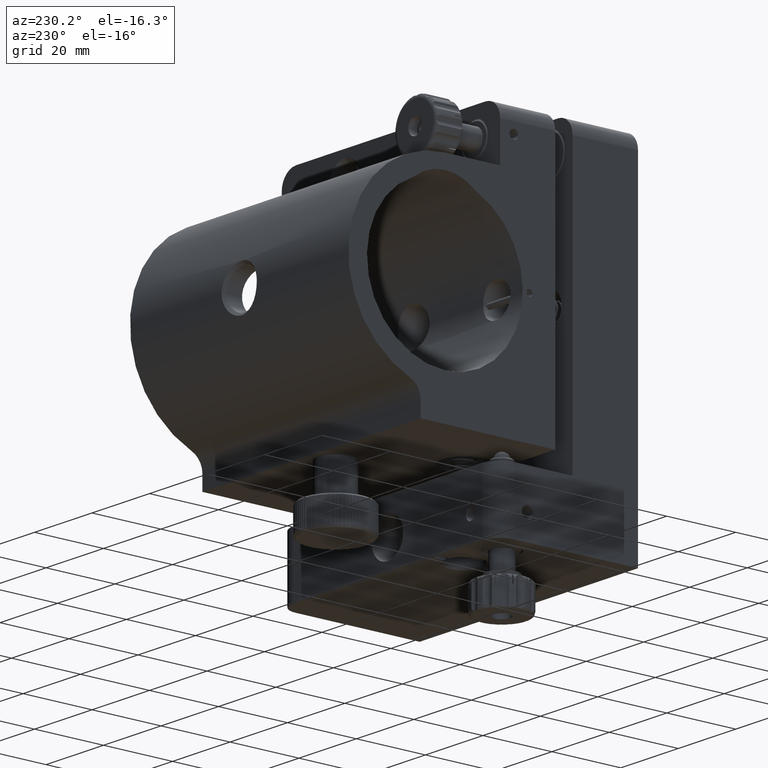
[diagram: clean part render]
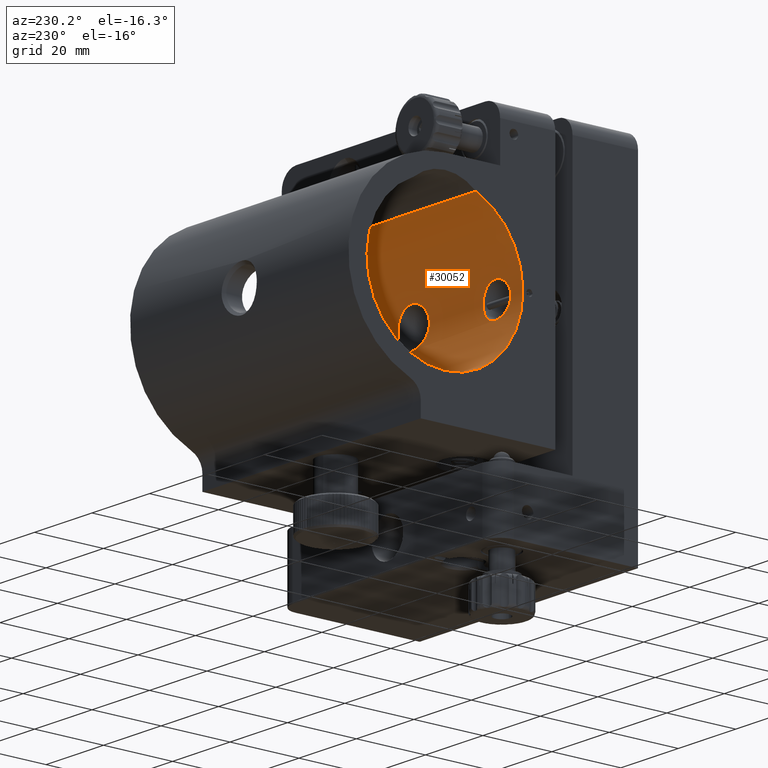
[diagram: same view with one face highlighted and labeled with its STEP entity id]
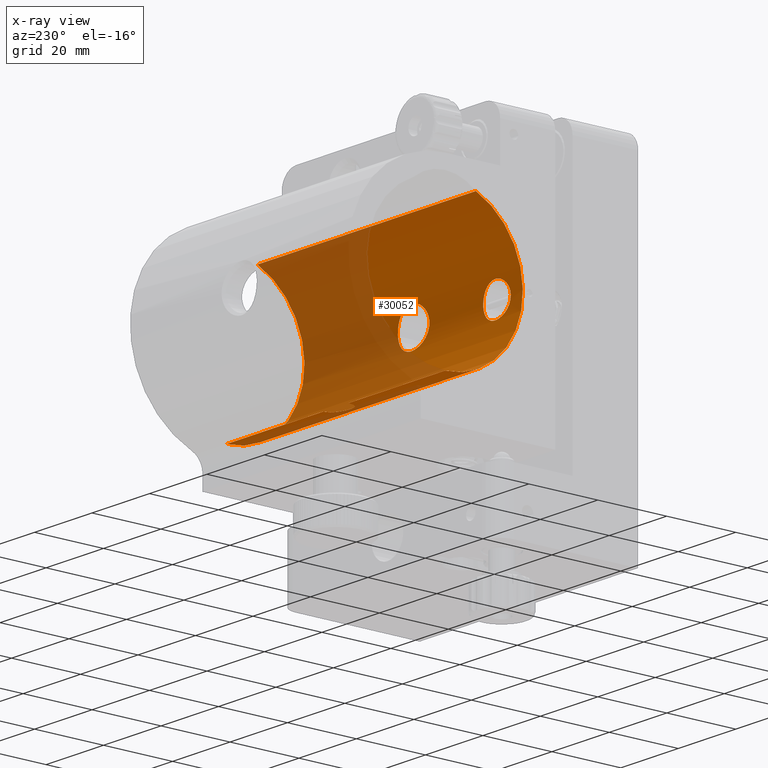
[diagram: x-ray of the same camera — body ghosted, the highlighted face saturated]
A machine part, auxiliary view. The second image highlights one B-rep face of the part: STEP entity #30052.
The next image is the same camera in x-ray: the body ghosted, the highlighted face saturated — about 46% of this face is hidden behind the body in this view.
In plain terms, the highlighted cylindrical surface (partial cylindrical patch) has radius 22.6 mm, axis along (1, -0, -0).
Its self-contained STEP definition (entity closure, byte-faithful):
#2195 = CARTESIAN_POINT ( 'NONE',  ( 37.99999999999998600, 47.01694061023731300, 20.73799999999990700 ) ) ;
#2232 = CARTESIAN_POINT ( 'NONE',  ( -38.00000000000000000, 47.01694061023731300, 20.73799999999990700 ) ) ;
#2248 = CARTESIAN_POINT ( 'NONE',  ( 8.346467968721894400E-015, 34.07946168544192700, 5.499999999999968000 ) ) ;
#2428 = CARTESIAN_POINT ( 'NONE',  ( 1.776651829401622500, 34.01005157653808900, 5.217475679901377300 ) ) ;
#2489 = EDGE_LOOP ( 'NONE', ( #15050, #18155 ) ) ;
#2530 = CARTESIAN_POINT ( 'NONE',  ( -26.06617915821696500, 33.72311972746749100, -3.812153637246024700 ) ) ;
#2570 = CARTESIAN_POINT ( 'NONE',  ( -5.464650970036623300, 33.40868142954541000, -0.7203364882578163800 ) ) ;
#2705 = CARTESIAN_POINT ( 'NONE',  ( -24.44674892012891100, 33.45143052342609000, 1.551603502541528200 ) ) ;
#2744 = CARTESIAN_POINT ( 'NONE',  ( -2.440007305407679600, 33.94655552045708200, 4.942223967232584900 ) ) ;
#2886 = CARTESIAN_POINT ( 'NONE',  ( -24.35458453327016700, 33.43240642765751900, 1.248250573659081200 ) ) ;
#2929 = CARTESIAN_POINT ( 'NONE',  ( -5.358349896053495900, 33.43408034800255300, -1.253359530072261300 ) ) ;
#3119 = CARTESIAN_POINT ( 'NONE',  ( -5.010706080715062100, 33.51416842081005100, 2.274969557391435200 ) ) ;
#3133 = CARTESIAN_POINT ( 'NONE',  ( -4.032559819079989600, 54.62933155733939800, -22.55987521291537600 ) ) ;
#3155 = CARTESIAN_POINT ( 'NONE',  ( -33.16325064628210100, 33.52727261855162100, 2.409318478730538600 ) ) ;
#3179 = CARTESIAN_POINT ( 'NONE',  ( 7.675776399004247800E-015, 34.07946168544189900, -5.500000000000032900 ) ) ;
#3298 = CARTESIAN_POINT ( 'NONE',  ( -1.775982307595658700, 34.01011844236690300, 5.217767744528132700 ) ) ;
#3312 = CARTESIAN_POINT ( 'NONE',  ( -4.113111557162672400, 54.89449205609441400, -22.57459453200042900 ) ) ;
#3326 = CARTESIAN_POINT ( 'NONE',  ( -32.17419201702691100, 33.68973501439483400, -3.614130438043294400 ) ) ;
#4323 = DIRECTION ( 'NONE',  ( 1.000000000000000000, -0.0000000000000000000, -0.0000000000000000000 ) ) ;
#4806 = VERTEX_POINT ( 'NONE', #44304 ) ;
#4845 = VERTEX_POINT ( 'NONE', #40373 ) ;
#6374 = CARTESIAN_POINT ( 'NONE',  ( 4.364954114247700200, 33.64937740638817600, -3.351026330674931100 ) ) ;
#6555 = CARTESIAN_POINT ( 'NONE',  ( 4.372010830170292000, 33.64856626473427100, 3.356088744609102100 ) ) ;
#6701 = CARTESIAN_POINT ( 'NONE',  ( -0.7210327387951265300, 34.06834864261833200, 5.455548209353076500 ) ) ;
#6727 = CARTESIAN_POINT ( 'NONE',  ( 5.217703089575752400, 33.46743602925136700, -1.776120598261833800 ) ) ;
#6750 = VERTEX_POINT ( 'NONE', #25323 ) ;
#6876 = CARTESIAN_POINT ( 'NONE',  ( -3.637358816264306700, 33.78112237389939300, -4.140928149216345700 ) ) ;
#6914 = CARTESIAN_POINT ( 'NONE',  ( 2.909797222453034400, 33.88767156880195600, 4.670688905450176300 ) ) ;
#7205 = CARTESIAN_POINT ( 'NONE',  ( -25.18231328034605800, 33.58872493661053900, -2.926436352141940300 ) ) ;
#7317 = CARTESIAN_POINT ( 'NONE',  ( -250.0000000000000000, 47.01694061023731300, 20.73799999999990700 ) ) ;
#7334 = B_SPLINE_CURVE_WITH_KNOTS ( 'NONE', 3,
 ( #2248, #54001, #19529, #45750, #2428, #11457, #37146, #53631, #6914, #24041, #28347, #45568, #6555, #49500, #41457, #36960, #41279, #23860, #53805, #32486, #24403, #19712, #49864, #41089, #6727, #11283, #27983, #36612, #6374, #15031, #45381, #36422, #49676, #23676, #50059, #54364, #36794, #10727, #19904, #40744 ),
 .UNSPECIFIED., .F., .F.,
 ( 4, 2, 2, 2, 2, 2, 2, 2, 2, 2, 2, 2, 2, 2, 2, 2, 2, 2, 2, 4 ),
 ( 0.01726039556535646400, 0.01833887838771401000, 0.01941736121007155800, 0.01995660262125033300, 0.02049584403242910400, 0.02157432685478665200, 0.02265280967714419800, 0.02373129249950174700, 0.02480977532185929200, 0.02534901673303806300, 0.02588825814421683700, 0.02696674096657438600, 0.02804522378893193100, 0.02912370661128947700, 0.02966294802246825100, 0.03020218943364702500, 0.03128067225600457400, 0.03235915507836212300, 0.03343763790071967200, 0.03451612072307722700 ),
 .UNSPECIFIED. ) ;
#7389 = CARTESIAN_POINT ( 'NONE',  ( -27.75167237691815500, 33.88254747563117800, 4.645675849172885600 ) ) ;
#7434 = CARTESIAN_POINT ( 'NONE',  ( -4.670357428949615500, 33.58766489860953200, 2.910278726050571600 ) ) ;
#7468 = CARTESIAN_POINT ( 'NONE',  ( -31.92819847237953500, 33.72383708994073000, -3.816265437612385900 ) ) ;
#7490 = VERTEX_POINT ( 'NONE', #27483 ) ;
#7657 = CARTESIAN_POINT ( 'NONE',  ( -28.99999999999999300, 33.91561637717708100, 4.799999999999896800 ) ) ;
#9108 = ORIENTED_EDGE ( 'NONE', *, *, #47027, .T. ) ;
#9763 = CARTESIAN_POINT ( 'NONE',  ( 0.5542119305636579200, 51.77695876621243100, -22.20200501478812100 ) ) ;
#10727 = CARTESIAN_POINT ( 'NONE',  ( 0.7243486358669023500, 34.07035446271667900, -5.464062307051279700 ) ) ;
#11202 = CARTESIAN_POINT ( 'NONE',  ( -27.74890780385564800, 33.88237045372560600, -4.644832917567874200 ) ) ;
#11283 = CARTESIAN_POINT ( 'NONE',  ( 4.942367419139675800, 33.52959703808843300, -2.439679119221417100 ) ) ;
#11457 = CARTESIAN_POINT ( 'NONE',  ( 2.273386836776596800, 33.96250643345450000, 5.011371901853853400 ) ) ;
#11603 = EDGE_CURVE ( 'NONE', #43175, #6750, #14529, .T. ) ;
#11618 = CARTESIAN_POINT ( 'NONE',  ( -4.941837652112250900, 33.52971181425413500, -2.440586788332213000 ) ) ;
#11765 = CARTESIAN_POINT ( 'NONE',  ( -24.83685292414082500, 33.52729276663227200, 2.409522048441625800 ) ) ;
#11838 = CARTESIAN_POINT ( 'NONE',  ( -29.31812644936291800, 33.91561637717707400, -4.800000000000087800 ) ) ;
#11997 = CARTESIAN_POINT ( 'NONE',  ( -1.884278467364153100, 52.18040221675740000, -22.27515127614113100 ) ) ;
#12172 = CARTESIAN_POINT ( 'NONE',  ( -4.222098093493668700, 55.43989091721324800, -22.59470610372353100 ) ) ;
#12189 = CARTESIAN_POINT ( 'NONE',  ( -33.64564778359604000, 33.43235891095851300, 1.247683361304228200 ) ) ;
#12344 = ORIENTED_EDGE ( 'NONE', *, *, #42893, .F. ) ;
#12386 = CARTESIAN_POINT ( 'NONE',  ( -33.79987616821114200, 33.40002630055477800, -0.3159739808531951100 ) ) ;
#13352 = DIRECTION ( 'NONE',  ( 1.000000000000000000, 0.0000000000000000000, 0.0000000000000000000 ) ) ;
#13387 = FACE_OUTER_BOUND ( 'NONE', #16350, .T. ) ;
#13415 = LINE ( 'NONE', #7317, #52961 ) ;
#14529 = LINE ( 'NONE', #36826, #22599 ) ;
#14988 = VECTOR ( 'NONE', #4323, 1000.000000000000000 ) ;
#15031 = CARTESIAN_POINT ( 'NONE',  ( 4.137235025438158700, 33.69273168766969200, -3.628427790745238000 ) ) ;
#15050 = ORIENTED_EDGE ( 'NONE', *, *, #54503, .F. ) ;
#15500 = VERTEX_POINT ( 'NONE', #2232 ) ;
#15687 = CARTESIAN_POINT ( 'NONE',  ( -28.99999999999999300, 33.91561637717708100, 4.799999999999896800 ) ) ;
#15874 = CARTESIAN_POINT ( 'NONE',  ( -24.23180059128260300, 33.40681252259447800, 0.6342623683304297000 ) ) ;
#15919 = CARTESIAN_POINT ( 'NONE',  ( -0.9019587134450245400, 34.06162577480814900, 5.428541851618517100 ) ) ;
#15952 = CARTESIAN_POINT ( 'NONE',  ( -32.81390642071525600, 33.58937604400545500, -2.931498141929336200 ) ) ;
#16113 = CARTESIAN_POINT ( 'NONE',  ( -1.105596994433070800, 51.88689408517588200, -22.22263347242475000 ) ) ;
#16126 = CARTESIAN_POINT ( 'NONE',  ( -33.16484252422775100, 33.52699180878005300, -2.407000268070673200 ) ) ;
#16162 = CARTESIAN_POINT ( 'NONE',  ( 37.99999999999998600, 55.99999999999979400, -9.584347204771859200E-014 ) ) ;
#16236 = CARTESIAN_POINT ( 'NONE',  ( -24.83334155462552000, 33.52664776501089200, -2.403688626288630100 ) ) ;
#16299 = CARTESIAN_POINT ( 'NONE',  ( -4.249999999999992000, 55.72216346672701100, -22.60000000000010100 ) ) ;
#16350 = EDGE_LOOP ( 'NONE', ( #12344, #38224, #9108, #39311, #52873, #26446, #41492 ) ) ;
#16410 = DIRECTION ( 'NONE',  ( 1.000000000000000000, -0.0000000000000000000, -0.0000000000000000000 ) ) ;
#16696 = CARTESIAN_POINT ( 'NONE',  ( -32.61652355258439700, 33.62254073222674600, 3.171772030041012600 ) ) ;
#17476 = DIRECTION ( 'NONE',  ( 0.0000000000000000000, 0.0000000000000000000, -1.000000000000000000 ) ) ;
#17656 = CARTESIAN_POINT ( 'NONE',  ( 4.250000000000007100, 55.71927081535427100, -22.60000000000009700 ) ) ;
#17846 = CARTESIAN_POINT ( 'NONE',  ( 1.371861425395285900, 51.96797637086022100, -22.23767948693794200 ) ) ;
#18017 = CARTESIAN_POINT ( 'NONE',  ( 4.032104222336450900, 54.62792564878216700, -22.55979270155776800 ) ) ;
#18155 = ORIENTED_EDGE ( 'NONE', *, *, #35555, .F. ) ;
#18340 = B_SPLINE_CURVE_WITH_KNOTS ( 'NONE', 3,
 ( #3179, #28929, #40878, #23463, #19496, #35837, #40135, #28501, #46091, #37109, #6876, #24728, #54699, #29050, #11618, #24365, #54336, #33183, #2929, #2570, #28869, #32992, #28687, #45715, #54147, #3119, #41605, #41250, #7434, #49831, #28308, #45342, #41055, #50201, #2744, #3298, #20223, #15919, #6701, #45532, #20047, #32642 ),
 .UNSPECIFIED., .F., .F.,
 ( 4, 2, 2, 2, 2, 2, 2, 2, 2, 2, 2, 2, 2, 2, 2, 2, 2, 2, 2, 2, 4 ),
 ( 2.770795377300459800E-021, 0.001078774722834775800, 0.001618162084252163400, 0.002157549445669551500, 0.003236324168504329000, 0.004315098891339106500, 0.005393873614173885800, 0.006472648337008665900, 0.007012035698426053800, 0.007551423059843442500, 0.008630197782678220000, 0.009708972505512999300, 0.01078774722834777800, 0.01132713458976517000, 0.01186652195118255900, 0.01294529667401734000, 0.01402407139685212100, 0.01510284611968690200, 0.01618162084252168500, 0.01672100820393907600, 0.01726039556535646400 ),
 .UNSPECIFIED. ) ;
#18578 = EDGE_CURVE ( 'NONE', #19349, #43175, #21483, .T. ) ;
#18748 = B_SPLINE_CURVE_WITH_KNOTS ( 'NONE', 3,
 ( #55078, #16299, #12172, #3312, #3133, #33376, #37852, #54717, #29067, #28698, #33199, #20598, #11997, #41991, #16113, #54350, #24918, #37316 ),
 .UNSPECIFIED., .F., .F.,
 ( 4, 2, 2, 2, 2, 2, 2, 2, 4 ),
 ( 0.006660174130079574300, 0.007492288067534073500, 0.008324402004988571900, 0.009156515942443070300, 0.009988629879897568600, 0.01082074381735206700, 0.01165285775480656500, 0.01248497169226106400, 0.01331708562971556200 ),
 .UNSPECIFIED. ) ;
#19349 = VERTEX_POINT ( 'NONE', #33106 ) ;
#19496 = CARTESIAN_POINT ( 'NONE',  ( -1.426688839024226300, 34.03376163281498600, -5.314819003931067900 ) ) ;
#19529 = CARTESIAN_POINT ( 'NONE',  ( 0.7180913259285591800, 34.07060472925172000, 5.465070879490337300 ) ) ;
#19712 = CARTESIAN_POINT ( 'NONE',  ( 5.500119342012377300, 33.39997095659119000, -0.3609831407668244200 ) ) ;
#19822 = CARTESIAN_POINT ( 'NONE',  ( -24.35294683082202700, 33.43206845934485500, -1.242306069718629400 ) ) ;
#19904 = CARTESIAN_POINT ( 'NONE',  ( 0.3647821834217714900, 34.07946168544189200, -5.500000000000032000 ) ) ;
#20004 = CARTESIAN_POINT ( 'NONE',  ( -26.87258190049195900, 33.81525296627592800, 4.314154161100884900 ) ) ;
#20047 = CARTESIAN_POINT ( 'NONE',  ( -0.1798737963193269800, 34.07946168544193500, 5.499999999999966200 ) ) ;
#20078 = FACE_BOUND ( 'NONE', #37188, .T. ) ;
#20187 = CARTESIAN_POINT ( 'NONE',  ( -26.86687446443618700, 33.81470079313115900, -4.311323210976545400 ) ) ;
#20223 = CARTESIAN_POINT ( 'NONE',  ( -1.433065739744168400, 34.03551471330106900, 5.322284021705848500 ) ) ;
#20259 = CARTESIAN_POINT ( 'NONE',  ( -33.31321153355015200, 33.49867152778696100, 2.129684487732626000 ) ) ;
#20439 = CARTESIAN_POINT ( 'NONE',  ( -32.61553255339882200, 33.62267879276767200, -3.172594859017085600 ) ) ;
#20543 = CARTESIAN_POINT ( 'NONE',  ( -27.44411171378724400, 33.86274486963220900, -4.551586978275326000 ) ) ;
#20598 = CARTESIAN_POINT ( 'NONE',  ( -2.133079069945617200, 52.31368150349494100, -22.29787627368817500 ) ) ;
#20799 = CARTESIAN_POINT ( 'NONE',  ( -33.64564830248875200, 33.43235952992725400, -1.248158731370105500 ) ) ;
#20994 = CARTESIAN_POINT ( 'NONE',  ( -31.41007137834746700, 33.78599443976421700, 4.162823636714533900 ) ) ;
#21408 = CARTESIAN_POINT ( 'NONE',  ( -38.00000000000000000, 55.99999999999979400, -22.60000000000009700 ) ) ;
#21437 = CARTESIAN_POINT ( 'NONE',  ( -250.0000000000000000, 55.99999999999979400, -22.60000000000009700 ) ) ;
#21483 = B_SPLINE_CURVE_WITH_KNOTS ( 'NONE', 3,
 ( #22518, #39392, #9763, #52296, #17846, #26634, #52126, #51942, #30961, #39757, #31158, #47805, #31343, #18017, #39035, #26996, #17656, #44068 ),
 .UNSPECIFIED., .F., .F.,
 ( 4, 2, 2, 2, 2, 2, 2, 2, 4 ),
 ( 0.01331708562971556200, 0.01414947221099310100, 0.01498185879227063900, 0.01581424537354817600, 0.01664663195482571400, 0.01747901853610325400, 0.01831140511738079200, 0.01914379169865832900, 0.01997617827993586700 ),
 .UNSPECIFIED. ) ;
#21590 = CARTESIAN_POINT ( 'NONE',  ( -38.00000000000000000, 55.99999999999979400, -9.584347204771859200E-014 ) ) ;
#22435 = VERTEX_POINT ( 'NONE', #21408 ) ;
#22465 = EDGE_CURVE ( 'NONE', #15500, #22435, #26173, .T. ) ;
#22518 = CARTESIAN_POINT ( 'NONE',  ( 8.193397807220716600E-015, 51.74999999999967300, -22.19679030851089200 ) ) ;
#22599 = VECTOR ( 'NONE', #37547, 1000.000000000000000 ) ;
#22634 = ORIENTED_EDGE ( 'NONE', *, *, #35623, .F. ) ;
#22916 = CARTESIAN_POINT ( 'NONE',  ( 4.249999999999997300, 55.99999999999979400, -22.60000000000009700 ) ) ;
#23463 = CARTESIAN_POINT ( 'NONE',  ( -1.252008776984978600, 34.04444146572080100, -5.358615424136683500 ) ) ;
#23676 = CARTESIAN_POINT ( 'NONE',  ( 2.760558968411255700, 33.90831611135527600, -4.770696387476045100 ) ) ;
#23816 = AXIS2_PLACEMENT_3D ( 'NONE', #24488, #16410, #54634 ) ;
#23860 = CARTESIAN_POINT ( 'NONE',  ( 5.428275683078829200, 33.41737377081985000, 0.9033436432466773700 ) ) ;
#24041 = CARTESIAN_POINT ( 'NONE',  ( 3.357559388306206900, 33.82578524187440600, 4.371019773824028400 ) ) ;
#24322 = CARTESIAN_POINT ( 'NONE',  ( -26.59220428303336400, 33.78625799651167900, 4.164268403455394300 ) ) ;
#24365 = CARTESIAN_POINT ( 'NONE',  ( -5.147888260120184100, 33.48320012787452500, -1.944557089447569000 ) ) ;
#24403 = CARTESIAN_POINT ( 'NONE',  ( 5.499939880395740700, 33.40001463087618600, 0.1832122078539075200 ) ) ;
#24404 = CARTESIAN_POINT ( 'NONE',  ( -4.249999999999982200, 55.99999999999979400, -22.60000000000009700 ) ) ;
#24488 = CARTESIAN_POINT ( 'NONE',  ( -250.0000000000000000, 55.99999999999979400, -9.584347204771859200E-014 ) ) ;
#24728 = CARTESIAN_POINT ( 'NONE',  ( -4.142548316718452900, 33.69285203434276400, -3.635513517906521200 ) ) ;
#24759 = CARTESIAN_POINT ( 'NONE',  ( -31.13173711473404400, 33.81485782531159900, -4.312146027498782200 ) ) ;
#24918 = CARTESIAN_POINT ( 'NONE',  ( -0.2776413905731343600, 51.74999999999968000, -22.19679030851089500 ) ) ;
#25123 = CARTESIAN_POINT ( 'NONE',  ( -32.81607742082670100, 33.58899228283399200, 2.928314292212718300 ) ) ;
#25317 = CARTESIAN_POINT ( 'NONE',  ( -30.24966693500653000, 33.88243696766461000, 4.645146430204468900 ) ) ;
#25323 = CARTESIAN_POINT ( 'NONE',  ( 37.99999999999998600, 55.99999999999979400, -22.60000000000009700 ) ) ;
#26173 = CIRCLE ( 'NONE', #42354, 22.59999999999999800 ) ;
#26446 = ORIENTED_EDGE ( 'NONE', *, *, #18578, .F. ) ;
#26634 = CARTESIAN_POINT ( 'NONE',  ( 1.883583856439864600, 52.18014003238496900, -22.27510433954314800 ) ) ;
#26996 = CARTESIAN_POINT ( 'NONE',  ( 4.222165153438693300, 55.44083320011619500, -22.59471930560179900 ) ) ;
#27483 = CARTESIAN_POINT ( 'NONE',  ( -28.99999999999998900, 33.91561637717707400, -4.800000000000088600 ) ) ;
#27983 = CARTESIAN_POINT ( 'NONE',  ( 4.773607872002041400, 33.56656765304087000, -2.755480825308770100 ) ) ;
#28270 = CARTESIAN_POINT ( 'NONE',  ( -25.38353041859703300, 33.62252437476214300, -3.171494839732197100 ) ) ;
#28308 = CARTESIAN_POINT ( 'NONE',  ( -4.143000995485452100, 33.69279424151106600, 3.635312184199937000 ) ) ;
#28347 = CARTESIAN_POINT ( 'NONE',  ( 3.633473197002516500, 33.78177005003328800, 4.144446651324810400 ) ) ;
#28454 = CARTESIAN_POINT ( 'NONE',  ( -28.68195716737160700, 33.91561637717708100, -4.800000000000089500 ) ) ;
#28501 = CARTESIAN_POINT ( 'NONE',  ( -2.443693501332622200, 33.94615754636684100, -4.940462871096436900 ) ) ;
#28641 = CARTESIAN_POINT ( 'NONE',  ( -24.68905658621791900, 33.49910839188001400, 2.134323243703999000 ) ) ;
#28687 = CARTESIAN_POINT ( 'NONE',  ( -5.464015124177537400, 33.40883433920132700, 0.7240963459191460700 ) ) ;
#28698 = CARTESIAN_POINT ( 'NONE',  ( -2.806739191257921800, 52.79643824538642600, -22.37268245647748400 ) ) ;
#28828 = CARTESIAN_POINT ( 'NONE',  ( -24.23077730403924000, 33.40659574145151100, -0.6268511819877564700 ) ) ;
#28869 = CARTESIAN_POINT ( 'NONE',  ( -5.499853317613103700, 33.40003569703810600, -0.3625072078268978800 ) ) ;
#28899 = CARTESIAN_POINT ( 'NONE',  ( -33.31335647795426500, 33.49863911256517900, -2.128998027626310700 ) ) ;
#28929 = CARTESIAN_POINT ( 'NONE',  ( -0.3648809147981096300, 34.07946168544190600, -5.500000000000032900 ) ) ;
#29003 = CARTESIAN_POINT ( 'NONE',  ( -28.36816170333264600, 33.90874551556404300, -4.768698447400495900 ) ) ;
#29050 = CARTESIAN_POINT ( 'NONE',  ( -4.771893086118613100, 33.56693918977146000, -2.758574996032945800 ) ) ;
#29067 = CARTESIAN_POINT ( 'NONE',  ( -3.202048900353005000, 53.19153500233422700, -22.42570517443953500 ) ) ;
#29485 = DIRECTION ( 'NONE',  ( 0.0000000000000000000, 0.0000000000000000000, -1.000000000000000000 ) ) ;
#29634 = CARTESIAN_POINT ( 'NONE',  ( -29.31377025830342100, 33.91561637717708100, 4.799999999999896800 ) ) ;
#30052 = ADVANCED_FACE ( 'NONE', ( #13387, #20078, #52938 ), #37512, .F. ) ;
#30666 = VERTEX_POINT ( 'NONE', #2195 ) ;
#30961 = CARTESIAN_POINT ( 'NONE',  ( 2.808153510712096100, 52.79788292682570000, -22.37287421074775300 ) ) ;
#31158 = CARTESIAN_POINT ( 'NONE',  ( 3.379377061817173500, 53.40789426014988100, -22.45205082834115000 ) ) ;
#31343 = CARTESIAN_POINT ( 'NONE',  ( 3.817951421818258400, 54.11222368229452700, -22.52250286573052000 ) ) ;
#31991 = EDGE_CURVE ( 'NONE', #32666, #7490, #51090, .T. ) ;
#32486 = CARTESIAN_POINT ( 'NONE',  ( 5.490783331202890400, 33.40224791872413600, 0.3659706032774690000 ) ) ;
#32597 = CARTESIAN_POINT ( 'NONE',  ( -26.59116932132876300, 33.78616297926952700, -4.163814939108236900 ) ) ;
#32642 = CARTESIAN_POINT ( 'NONE',  ( 8.346467968721894400E-015, 34.07946168544192700, 5.499999999999968000 ) ) ;
#32666 = VERTEX_POINT ( 'NONE', #37184 ) ;
#32953 = CARTESIAN_POINT ( 'NONE',  ( -24.44580645292942800, 33.45123504998603900, -1.548468787682276200 ) ) ;
#32992 = CARTESIAN_POINT ( 'NONE',  ( -5.500145776312539400, 33.39996452346632300, 0.3580424978932043000 ) ) ;
#33106 = CARTESIAN_POINT ( 'NONE',  ( 8.193397807220716600E-015, 51.74999999999967300, -22.19679030851089200 ) ) ;
#33138 = CARTESIAN_POINT ( 'NONE',  ( -24.20014359513927700, 33.40003049807949500, 0.3189865246972121700 ) ) ;
#33183 = CARTESIAN_POINT ( 'NONE',  ( -5.313749544135645500, 33.44466092436770300, -1.430593694314901100 ) ) ;
#33199 = CARTESIAN_POINT ( 'NONE',  ( -2.592783350558748100, 52.62117699880853600, -22.34653855748134900 ) ) ;
#33323 = CARTESIAN_POINT ( 'NONE',  ( -28.68631221344465800, 33.91561637717708800, 4.799999999999897700 ) ) ;
#33376 = CARTESIAN_POINT ( 'NONE',  ( -3.818874952809689500, 54.11414084063331100, -22.52266051853227300 ) ) ;
#33393 = CARTESIAN_POINT ( 'NONE',  ( -33.55301036326257200, 33.45147230862625100, -1.551700144863713800 ) ) ;
#33575 = CARTESIAN_POINT ( 'NONE',  ( -30.54891846339212000, 33.86325185411816800, 4.554056364710248800 ) ) ;
#33987 = AXIS2_PLACEMENT_3D ( 'NONE', #16162, #55333, #29485 ) ;
#34904 = B_SPLINE_CURVE_WITH_KNOTS ( 'NONE', 3,
 ( #50601, #11838, #50973, #41821, #37513, #24759, #46478, #7468, #3326, #20439, #15952, #16126, #28899, #33393, #20799, #54914, #12386, #46125, #37873, #12189, #42366, #20259, #3155, #25123, #16696, #54737, #42189, #20994, #50793, #33575, #25317, #55096, #29634, #7657 ),
 .UNSPECIFIED., .F., .F.,
 ( 4, 2, 2, 2, 2, 2, 2, 2, 2, 2, 2, 2, 2, 2, 2, 2, 4 ),
 ( 3.576224061345498000E-018, 0.0009406169165813586900, 0.001881233833162713700, 0.002821850749744068800, 0.003762467666325423900, 0.004703084582906779000, 0.005643701499488134100, 0.006584318416069489200, 0.007524935332650844300, 0.008465552249232198600, 0.009406169165813554500, 0.01034678608239491100, 0.01128740299897626500, 0.01222801991555761900, 0.01316863683213897500, 0.01410925374872033100, 0.01504987066530168500 ),
 .UNSPECIFIED. ) ;
#35555 = EDGE_CURVE ( 'NONE', #4845, #4806, #7334, .T. ) ;
#35623 = EDGE_CURVE ( 'NONE', #7490, #32666, #34904, .T. ) ;
#35837 = CARTESIAN_POINT ( 'NONE',  ( -1.772936359307576200, 34.00855870356038900, -5.209552644305295700 ) ) ;
#36422 = CARTESIAN_POINT ( 'NONE',  ( 3.638788000518302200, 33.78088480780384400, -4.139641987619981500 ) ) ;
#36612 = CARTESIAN_POINT ( 'NONE',  ( 4.473163234147296700, 33.62792861608871700, -3.205200829003412200 ) ) ;
#36794 = CARTESIAN_POINT ( 'NONE',  ( 1.433238186481377900, 34.03550947224599100, -5.322263253770183900 ) ) ;
#36826 = CARTESIAN_POINT ( 'NONE',  ( -250.0000000000000000, 55.99999999999979400, -22.60000000000009700 ) ) ;
#36960 = CARTESIAN_POINT ( 'NONE',  ( 5.217352118944912600, 33.46752558563932900, 1.777754285658795800 ) ) ;
#37109 = CARTESIAN_POINT ( 'NONE',  ( -3.355902199240689700, 33.82603498698522100, -4.372276773464955500 ) ) ;
#37146 = CARTESIAN_POINT ( 'NONE',  ( 2.435750080970920300, 33.94511586056508200, 4.934539819118763000 ) ) ;
#37184 = CARTESIAN_POINT ( 'NONE',  ( -28.99999999999999300, 33.91561637717708100, 4.799999999999896800 ) ) ;
#37188 = EDGE_LOOP ( 'NONE', ( #22634, #51967 ) ) ;
#37256 = CARTESIAN_POINT ( 'NONE',  ( -25.82425100140002200, 33.68951043058424200, -3.612734428317726700 ) ) ;
#37316 = CARTESIAN_POINT ( 'NONE',  ( 8.193397807220716600E-015, 51.74999999999967300, -22.19679030851089200 ) ) ;
#37512 = CYLINDRICAL_SURFACE ( 'NONE', #23816, 22.59999999999999800 ) ;
#37513 = CARTESIAN_POINT ( 'NONE',  ( -30.55086830747993100, 33.86312075535603600, -4.553428815921313000 ) ) ;
#37547 = DIRECTION ( 'NONE',  ( 1.000000000000000000, -0.0000000000000000000, -0.0000000000000000000 ) ) ;
#37852 = CARTESIAN_POINT ( 'NONE',  ( -3.685983674367891500, 53.86635097336957800, -22.50024272069795500 ) ) ;
#37873 = CARTESIAN_POINT ( 'NONE',  ( -33.76866678088205000, 33.40671418625324700, 0.6313273574132259900 ) ) ;
#38224 = ORIENTED_EDGE ( 'NONE', *, *, #22465, .F. ) ;
#39035 = CARTESIAN_POINT ( 'NONE',  ( 4.113755721127384700, 54.89711289793726900, -22.57471257954640700 ) ) ;
#39311 = ORIENTED_EDGE ( 'NONE', *, *, #54403, .T. ) ;
#39392 = CARTESIAN_POINT ( 'NONE',  ( 0.2777323603391328400, 51.74999999999969400, -22.19679030851089900 ) ) ;
#39757 = CARTESIAN_POINT ( 'NONE',  ( 3.200157221288126400, 53.18961325631573100, -22.42544939463153100 ) ) ;
#40135 = CARTESIAN_POINT ( 'NONE',  ( -1.944646276250845200, 33.99399556030108700, -5.147893130937003300 ) ) ;
#40373 = CARTESIAN_POINT ( 'NONE',  ( 8.346467968721894400E-015, 34.07946168544192700, 5.499999999999968000 ) ) ;
#40744 = CARTESIAN_POINT ( 'NONE',  ( 7.675776399004247800E-015, 34.07946168544189900, -5.500000000000032900 ) ) ;
#40878 = CARTESIAN_POINT ( 'NONE',  ( -0.7233781988226070100, 34.07035398560775300, -5.464052063005926400 ) ) ;
#41055 = CARTESIAN_POINT ( 'NONE',  ( -3.356788613730934800, 33.82588602850711400, 4.371494561440354000 ) ) ;
#41089 = CARTESIAN_POINT ( 'NONE',  ( 5.324354730952443900, 33.44220509470590500, -1.425080019547763300 ) ) ;
#41250 = CARTESIAN_POINT ( 'NONE',  ( -4.762632890526451700, 33.56819704099533700, 2.756756082276428100 ) ) ;
#41279 = CARTESIAN_POINT ( 'NONE',  ( 5.322623149543551900, 33.44261452975035100, 1.431261445417755000 ) ) ;
#41457 = CARTESIAN_POINT ( 'NONE',  ( 4.939177587507493300, 33.53030673681335100, 2.446568656772333900 ) ) ;
#41492 = ORIENTED_EDGE ( 'NONE', *, *, #46437, .F. ) ;
#41563 = CARTESIAN_POINT ( 'NONE',  ( -25.38647994105122800, 33.62301049125995400, 3.174957446713635900 ) ) ;
#41605 = CARTESIAN_POINT ( 'NONE',  ( -4.932631968902969200, 33.53148936661956000, 2.439573324671521900 ) ) ;
#41821 = CARTESIAN_POINT ( 'NONE',  ( -30.24549703454339100, 33.88265489839434300, -4.646177786906362100 ) ) ;
#41930 = CARTESIAN_POINT ( 'NONE',  ( -24.68611907321909300, 33.49854025719124500, -2.128113201914203100 ) ) ;
#41991 = CARTESIAN_POINT ( 'NONE',  ( -1.370493275340674000, 51.96743496635577500, -22.23758329608128600 ) ) ;
#42189 = CARTESIAN_POINT ( 'NONE',  ( -31.92919109519753500, 33.72369511221305100, 3.815414028245748900 ) ) ;
#42354 = AXIS2_PLACEMENT_3D ( 'NONE', #21590, #13352, #17476 ) ;
#42366 = CARTESIAN_POINT ( 'NONE',  ( -33.55466948909545300, 33.45114185959359800, 1.547364079828071700 ) ) ;
#42480 = LINE ( 'NONE', #21437, #14988 ) ;
#42893 = EDGE_CURVE ( 'NONE', #22435, #44542, #42480, .T. ) ;
#43175 = VERTEX_POINT ( 'NONE', #22916 ) ;
#44068 = CARTESIAN_POINT ( 'NONE',  ( 4.249999999999997300, 55.99999999999979400, -22.60000000000009700 ) ) ;
#44304 = CARTESIAN_POINT ( 'NONE',  ( 7.675776399004247800E-015, 34.07946168544189900, -5.500000000000032900 ) ) ;
#44542 = VERTEX_POINT ( 'NONE', #24404 ) ;
#45342 = CARTESIAN_POINT ( 'NONE',  ( -3.633054479000781300, 33.78185299467220700, 4.144980950233462900 ) ) ;
#45381 = CARTESIAN_POINT ( 'NONE',  ( 4.017199186525047600, 33.71474781930737000, -3.760846204031518700 ) ) ;
#45532 = CARTESIAN_POINT ( 'NONE',  ( -0.3600521534491797300, 34.07724742181013500, 5.491198131718301800 ) ) ;
#45568 = CARTESIAN_POINT ( 'NONE',  ( 4.140807803085887300, 33.69318705197088100, 3.637619586613778800 ) ) ;
#45672 = CARTESIAN_POINT ( 'NONE',  ( -27.45044481418485600, 33.86319321911805200, 4.553758076794574400 ) ) ;
#45715 = CARTESIAN_POINT ( 'NONE',  ( -5.322882374850980400, 33.44255374797697300, 1.430629238801954100 ) ) ;
#45750 = CARTESIAN_POINT ( 'NONE',  ( 1.432470708082989500, 34.03560394370334300, 5.322657469790005500 ) ) ;
#45859 = CARTESIAN_POINT ( 'NONE',  ( -28.37389320649820600, 33.90892954087491500, 4.769550946710628700 ) ) ;
#46091 = CARTESIAN_POINT ( 'NONE',  ( -2.759061703234011900, 33.90848429125362900, -4.771421410061900100 ) ) ;
#46125 = CARTESIAN_POINT ( 'NONE',  ( -33.80012309013710600, 33.39997385696375400, 0.3122004264410527300 ) ) ;
#46229 = CARTESIAN_POINT ( 'NONE',  ( -26.07018127447539200, 33.72362930485910900, 3.815071924122170900 ) ) ;
#46437 = EDGE_CURVE ( 'NONE', #44542, #19349, #18748, .T. ) ;
#46478 = CARTESIAN_POINT ( 'NONE',  ( -31.40708959395107400, 33.78632925392198400, -4.164630580334018000 ) ) ;
#46520 = DIRECTION ( 'NONE',  ( 1.000000000000000000, -0.0000000000000000000, -0.0000000000000000000 ) ) ;
#47027 = EDGE_CURVE ( 'NONE', #15500, #30666, #13415, .T. ) ;
#47805 = CARTESIAN_POINT ( 'NONE',  ( 3.687197246230181400, 53.86838606687509700, -22.50044045357969600 ) ) ;
#49500 = CARTESIAN_POINT ( 'NONE',  ( 4.769684478464746700, 33.56738977856220900, 2.761868993401162400 ) ) ;
#49676 = CARTESIAN_POINT ( 'NONE',  ( 3.360251403473164100, 33.82539513965870300, -4.369089189408867000 ) ) ;
#49831 = CARTESIAN_POINT ( 'NONE',  ( -4.372076025877434300, 33.64855365960568200, 3.356008690950913900 ) ) ;
#49864 = CARTESIAN_POINT ( 'NONE',  ( 5.464689495589696300, 33.40867004863358900, -0.7188706976372838400 ) ) ;
#49978 = CARTESIAN_POINT ( 'NONE',  ( -25.18428238063859600, 33.58905450963461400, 2.928803360837999300 ) ) ;
#50059 = CARTESIAN_POINT ( 'NONE',  ( 2.445134479623779300, 33.94597046869558500, -4.939612601415400500 ) ) ;
#50164 = CARTESIAN_POINT ( 'NONE',  ( -28.99999999999998900, 33.91561637717707400, -4.800000000000088600 ) ) ;
#50201 = CARTESIAN_POINT ( 'NONE',  ( -2.762185206414663700, 33.90807912973571100, 4.769520666004101600 ) ) ;
#50601 = CARTESIAN_POINT ( 'NONE',  ( -28.99999999999998900, 33.91561637717707400, -4.800000000000088600 ) ) ;
#50793 = CARTESIAN_POINT ( 'NONE',  ( -31.12894983906668900, 33.81512007052489100, 4.313484712147816100 ) ) ;
#50973 = CARTESIAN_POINT ( 'NONE',  ( -29.63074929363070700, 33.90874525628117900, -4.768688102527035800 ) ) ;
#51090 = B_SPLINE_CURVE_WITH_KNOTS ( 'NONE', 3,
 ( #15687, #33323, #45859, #7389, #45672, #20004, #24322, #46229, #54289, #41563, #49978, #11765, #28641, #2705, #2886, #15874, #33138, #54474, #28828, #19822, #32953, #41930, #16236, #7205, #28270, #37256, #2530, #32597, #20187, #20543, #11202, #29003, #28454, #50164 ),
 .UNSPECIFIED., .F., .F.,
 ( 4, 2, 2, 2, 2, 2, 2, 2, 2, 2, 2, 2, 2, 2, 2, 2, 4 ),
 ( 0.01504987066530168500, 0.01599024034901333100, 0.01693061003272497400, 0.01787097971643662000, 0.01881134940014826700, 0.01975171908385991300, 0.02069208876757155900, 0.02163245845128320500, 0.02257282813499485200, 0.02351319781870649800, 0.02445356750241814400, 0.02539393718612979100, 0.02633430686984143300, 0.02727467655355307600, 0.02821504623726472200, 0.02915541592097636900, 0.03009578560468801500 ),
 .UNSPECIFIED. ) ;
#51942 = CARTESIAN_POINT ( 'NONE',  ( 2.594604647767214000, 52.62241465009304200, -22.34673344797409200 ) ) ;
#51967 = ORIENTED_EDGE ( 'NONE', *, *, #31991, .F. ) ;
#52126 = CARTESIAN_POINT ( 'NONE',  ( 2.131666426630760100, 52.31271721728632700, -22.29772464335797000 ) ) ;
#52296 = CARTESIAN_POINT ( 'NONE',  ( 1.104592796562014400, 51.88647318228841200, -22.22255613242803200 ) ) ;
#52873 = ORIENTED_EDGE ( 'NONE', *, *, #11603, .F. ) ;
#52938 = FACE_BOUND ( 'NONE', #2489, .T. ) ;
#52961 = VECTOR ( 'NONE', #46520, 1000.000000000000000 ) ;
#53631 = CARTESIAN_POINT ( 'NONE',  ( 2.753956730648989400, 33.90770918122714800, 4.764271613702522500 ) ) ;
#53805 = CARTESIAN_POINT ( 'NONE',  ( 5.454932684786176500, 33.41093211015245900, 0.7254967106267462600 ) ) ;
#54001 = CARTESIAN_POINT ( 'NONE',  ( 0.3596502502633381300, 34.07946168544194200, 5.499999999999969800 ) ) ;
#54025 = CIRCLE ( 'NONE', #33987, 22.59999999999999800 ) ;
#54147 = CARTESIAN_POINT ( 'NONE',  ( -5.218512664545238000, 33.46725360832560600, 1.774196501933300600 ) ) ;
#54289 = CARTESIAN_POINT ( 'NONE',  ( -25.82918565735039400, 33.69022196763513200, 3.617156121777849600 ) ) ;
#54336 = CARTESIAN_POINT ( 'NONE',  ( -5.208603034774350600, 33.46920036543743000, -1.775665216800386100 ) ) ;
#54350 = CARTESIAN_POINT ( 'NONE',  ( -0.5596630748390462000, 51.77782494165359900, -22.20216918440565100 ) ) ;
#54364 = CARTESIAN_POINT ( 'NONE',  ( 1.783400140889201100, 34.00950086954082300, -5.215164351483397600 ) ) ;
#54403 = EDGE_CURVE ( 'NONE', #30666, #6750, #54025, .T. ) ;
#54474 = CARTESIAN_POINT ( 'NONE',  ( -24.19985738419934800, 33.39996970992119400, -0.3146502474105110600 ) ) ;
#54503 = EDGE_CURVE ( 'NONE', #4806, #4845, #18340, .T. ) ;
#54634 = DIRECTION ( 'NONE',  ( 0.0000000000000000000, 0.0000000000000000000, -1.000000000000000000 ) ) ;
#54699 = CARTESIAN_POINT ( 'NONE',  ( -4.369743939933687900, 33.64902875061908100, -3.359469829228666000 ) ) ;
#54717 = CARTESIAN_POINT ( 'NONE',  ( -3.378497484337179100, 53.40679955173629200, -22.45191956368736500 ) ) ;
#54737 = CARTESIAN_POINT ( 'NONE',  ( -32.17062697686307600, 33.69026409612016700, 3.617527469216521600 ) ) ;
#54914 = CARTESIAN_POINT ( 'NONE',  ( -33.76922313484902100, 33.40659747744870600, -0.6280597576129802700 ) ) ;
#55078 = CARTESIAN_POINT ( 'NONE',  ( -4.249999999999982200, 55.99999999999979400, -22.60000000000009700 ) ) ;
#55096 = CARTESIAN_POINT ( 'NONE',  ( -29.63242926061720100, 33.90871452788304900, 4.768551775623822500 ) ) ;
#55333 = DIRECTION ( 'NONE',  ( 1.000000000000000000, 0.0000000000000000000, 0.0000000000000000000 ) ) ;